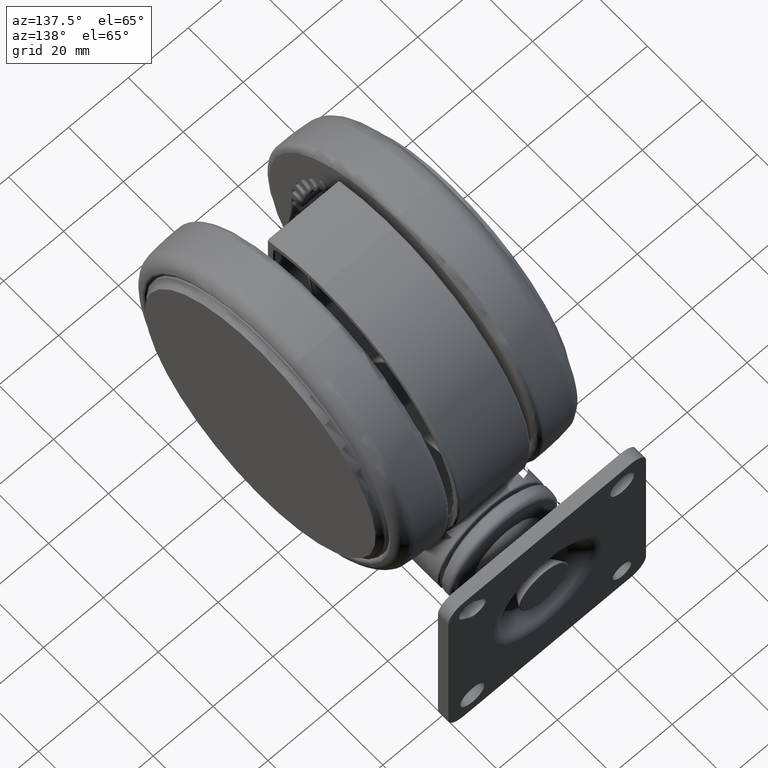
[diagram: clean part render]
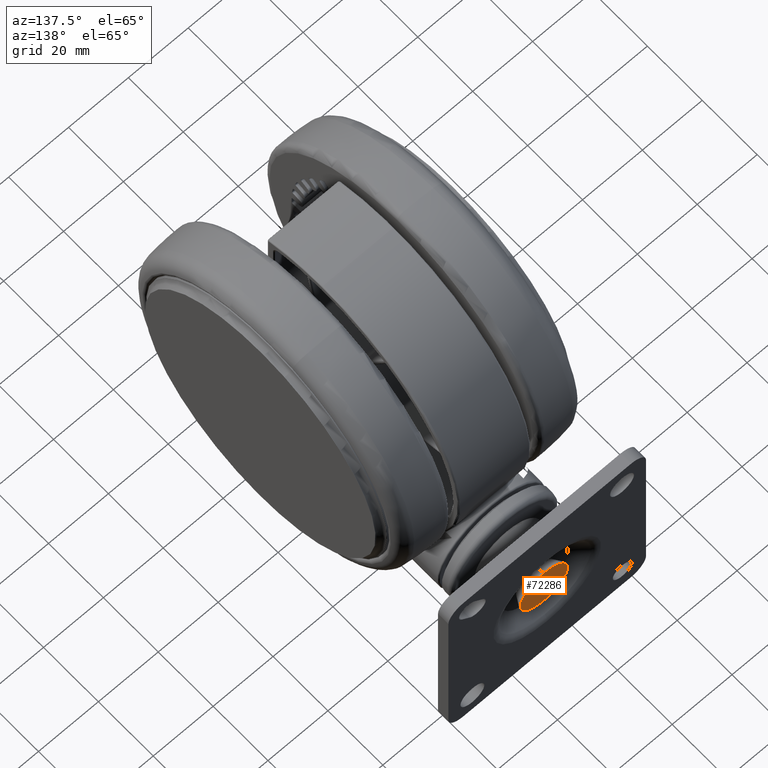
[diagram: same view with one face highlighted and labeled with its STEP entity id]
A machine part, auxiliary view. The second image highlights one B-rep face of the part: STEP entity #72286.
In plain terms, the highlighted planar face has unit normal (0, 1, -0).
Its self-contained STEP definition (entity closure, byte-faithful):
#2949 = DIRECTION ( 'NONE',  ( 0.9778017858731170600, 0.2095320203294543100, 0.0000000000000000000 ) ) ;
#7199 = CARTESIAN_POINT ( 'NONE',  ( 27.76231549815892000, 75.28812225214387900, -32.59999999999990200 ) ) ;
#15743 = FACE_OUTER_BOUND ( 'NONE', #27058, .T. ) ;
#20875 = CARTESIAN_POINT ( 'NONE',  ( 12.27126755631385000, 71.96856340170097600, -32.59999999999990200 ) ) ;
#22302 = DIRECTION ( 'NONE',  ( -0.2095320203294539500, 0.9778017858731172800, 3.399077683616229400E-033 ) ) ;
#24399 = EDGE_CURVE ( 'NONE', #43389, #55984, #47183, .T. ) ;
#27058 = EDGE_LOOP ( 'NONE', ( #58248, #29796 ) ) ;
#29796 = ORIENTED_EDGE ( 'NONE', *, *, #57836, .T. ) ;
#33999 = CARTESIAN_POINT ( 'NONE',  ( 20.01679152723578200, 73.62834282692293200, -32.59999999999990200 ) ) ;
#39137 = DIRECTION ( 'NONE',  ( -0.2095320203294539500, 0.9778017858731172800, 3.399077683616229400E-033 ) ) ;
#39629 = AXIS2_PLACEMENT_3D ( 'NONE', #75278, #39137, #2949 ) ;
#40080 = DIRECTION ( 'NONE',  ( 0.9778017858731172800, 0.2095320203294539500, -5.551115123124085400E-017 ) ) ;
#42459 = AXIS2_PLACEMENT_3D ( 'NONE', #33999, #76229, #40080 ) ;
#43389 = VERTEX_POINT ( 'NONE', #7199 ) ;
#47183 = CIRCLE ( 'NONE', #71146, 7.921364107560939300 ) ;
#52671 = CIRCLE ( 'NONE', #39629, 7.921364107560939300 ) ;
#55984 = VERTEX_POINT ( 'NONE', #20875 ) ;
#57836 = EDGE_CURVE ( 'NONE', #55984, #43389, #52671, .T. ) ;
#58248 = ORIENTED_EDGE ( 'NONE', *, *, #24399, .T. ) ;
#58477 = CARTESIAN_POINT ( 'NONE',  ( 20.01679152723578200, 73.62834282692293200, -32.59999999999990200 ) ) ;
#64514 = DIRECTION ( 'NONE',  ( 0.9778017858731170600, 0.2095320203294543100, 0.0000000000000000000 ) ) ;
#71146 = AXIS2_PLACEMENT_3D ( 'NONE', #58477, #22302, #64514 ) ;
#72286 = ADVANCED_FACE ( 'NONE', ( #15743 ), #75953, .T. ) ;
#75278 = CARTESIAN_POINT ( 'NONE',  ( 20.01679152723578200, 73.62834282692293200, -32.59999999999990200 ) ) ;
#75953 = PLANE ( 'NONE',  #42459 ) ;
#76229 = DIRECTION ( 'NONE',  ( -0.2095320203294539500, 0.9778017858731172800, 3.081487911019577400E-033 ) ) ;